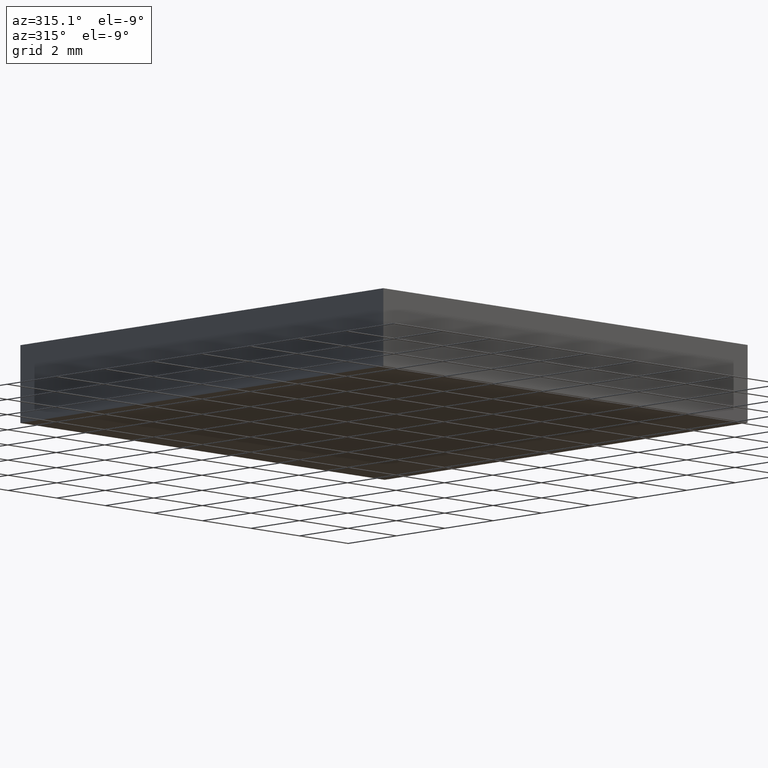
[diagram: clean part render]
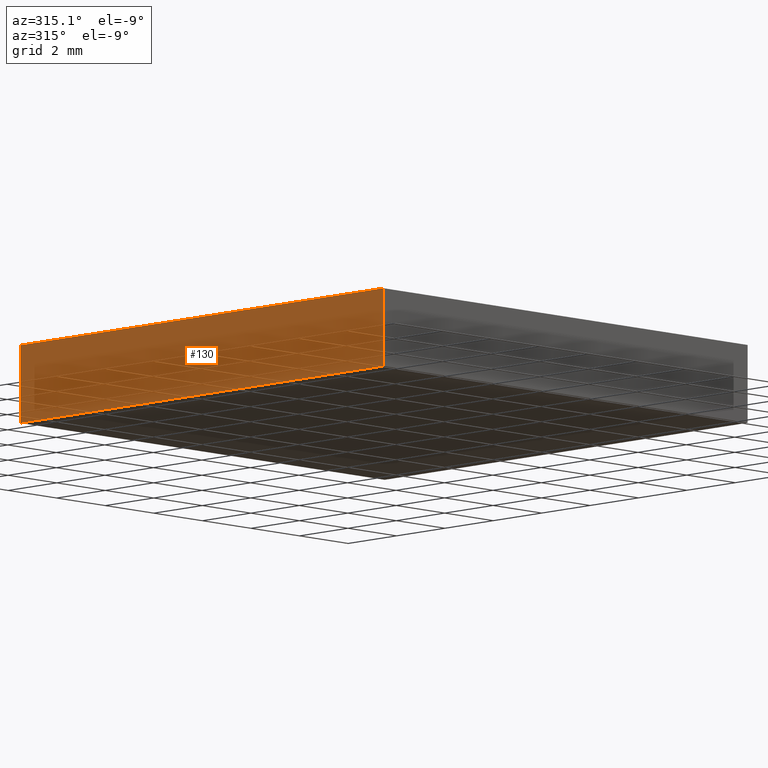
[diagram: same view with one face highlighted and labeled with its STEP entity id]
A machine part, auxiliary view. The second image highlights one B-rep face of the part: STEP entity #130.
In plain terms, the highlighted planar face has unit normal (1, 0, -0).
Its self-contained STEP definition (entity closure, byte-faithful):
#1 = ORIENTED_EDGE ( 'NONE', *, *, #21, .F. ) ;
#3 = EDGE_CURVE ( 'NONE', #170, #145, #12, .T. ) ;
#5 = VERTEX_POINT ( 'NONE', #72 ) ;
#6 = AXIS2_PLACEMENT_3D ( 'NONE', #166, #74, #26 ) ;
#7 = CARTESIAN_POINT ( 'NONE',  ( 46.80749197114184300, 38.28162091726329700, 0.0000000000000000000 ) ) ;
#12 = LINE ( 'NONE', #23, #98 ) ;
#21 = EDGE_CURVE ( 'NONE', #5, #170, #109, .T. ) ;
#22 = FACE_OUTER_BOUND ( 'NONE', #50, .T. ) ;
#23 = CARTESIAN_POINT ( 'NONE',  ( 46.80749197114185000, 23.28162091726329700, 2.299999999999999800 ) ) ;
#26 = DIRECTION ( 'NONE',  ( -4.625929269271485900E-016, 1.000000000000000000, 0.0000000000000000000 ) ) ;
#30 = EDGE_CURVE ( 'NONE', #5, #47, #33, .T. ) ;
#33 = LINE ( 'NONE', #195, #131 ) ;
#39 = PLANE ( 'NONE',  #6 ) ;
#47 = VERTEX_POINT ( 'NONE', #181 ) ;
#50 = EDGE_LOOP ( 'NONE', ( #68, #114, #1, #158 ) ) ;
#56 = DIRECTION ( 'NONE',  ( 4.625929269271485900E-016, -1.000000000000000000, 0.0000000000000000000 ) ) ;
#58 = DIRECTION ( 'NONE',  ( 4.625929269271485900E-016, -1.000000000000000000, 0.0000000000000000000 ) ) ;
#68 = ORIENTED_EDGE ( 'NONE', *, *, #95, .T. ) ;
#72 = CARTESIAN_POINT ( 'NONE',  ( 46.80749197114184300, 38.28162091726329700, 2.299999999999999800 ) ) ;
#74 = DIRECTION ( 'NONE',  ( 1.000000000000000000, 4.625929269271485900E-016, -0.0000000000000000000 ) ) ;
#81 = LINE ( 'NONE', #7, #200 ) ;
#92 = VECTOR ( 'NONE', #56, 1000.000000000000000 ) ;
#95 = EDGE_CURVE ( 'NONE', #47, #145, #81, .T. ) ;
#98 = VECTOR ( 'NONE', #132, 1000.000000000000000 ) ;
#99 = DIRECTION ( 'NONE',  ( -0.0000000000000000000, -0.0000000000000000000, -1.000000000000000000 ) ) ;
#109 = LINE ( 'NONE', #163, #92 ) ;
#114 = ORIENTED_EDGE ( 'NONE', *, *, #3, .F. ) ;
#130 = ADVANCED_FACE ( 'NONE', ( #22 ), #39, .F. ) ;
#131 = VECTOR ( 'NONE', #99, 1000.000000000000000 ) ;
#132 = DIRECTION ( 'NONE',  ( -0.0000000000000000000, -0.0000000000000000000, -1.000000000000000000 ) ) ;
#145 = VERTEX_POINT ( 'NONE', #183 ) ;
#148 = CARTESIAN_POINT ( 'NONE',  ( 46.80749197114185000, 23.28162091726329700, 2.299999999999999800 ) ) ;
#158 = ORIENTED_EDGE ( 'NONE', *, *, #30, .T. ) ;
#163 = CARTESIAN_POINT ( 'NONE',  ( 46.80749197114184300, 38.28162091726329700, 2.299999999999999800 ) ) ;
#166 = CARTESIAN_POINT ( 'NONE',  ( 46.80749197114184300, 38.28162091726329700, 2.299999999999999800 ) ) ;
#170 = VERTEX_POINT ( 'NONE', #148 ) ;
#181 = CARTESIAN_POINT ( 'NONE',  ( 46.80749197114184300, 38.28162091726329700, 0.0000000000000000000 ) ) ;
#183 = CARTESIAN_POINT ( 'NONE',  ( 46.80749197114185000, 23.28162091726329700, 0.0000000000000000000 ) ) ;
#195 = CARTESIAN_POINT ( 'NONE',  ( 46.80749197114184300, 38.28162091726329700, 2.299999999999999800 ) ) ;
#200 = VECTOR ( 'NONE', #58, 1000.000000000000000 ) ;